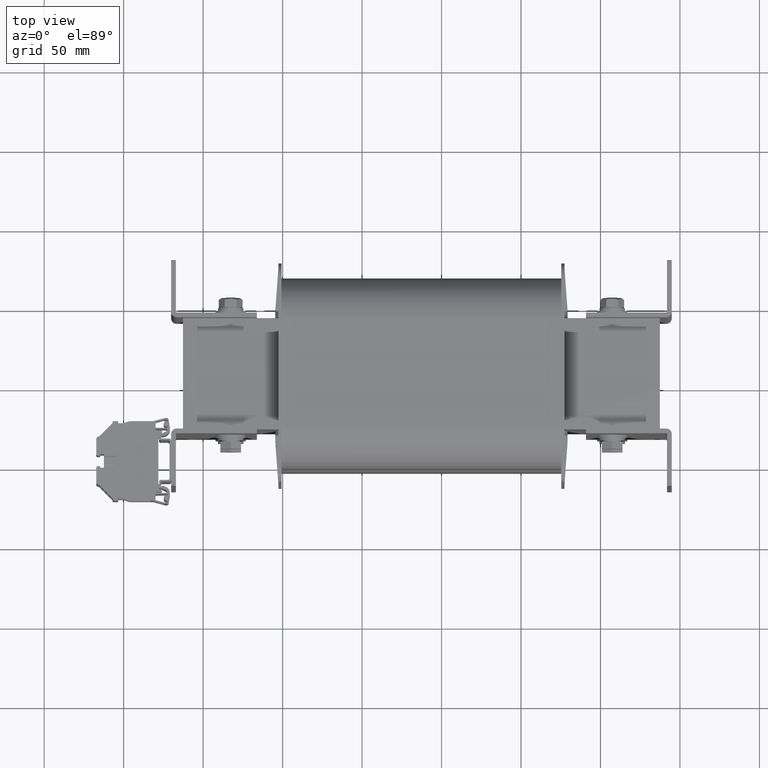
[diagram: clean part render]
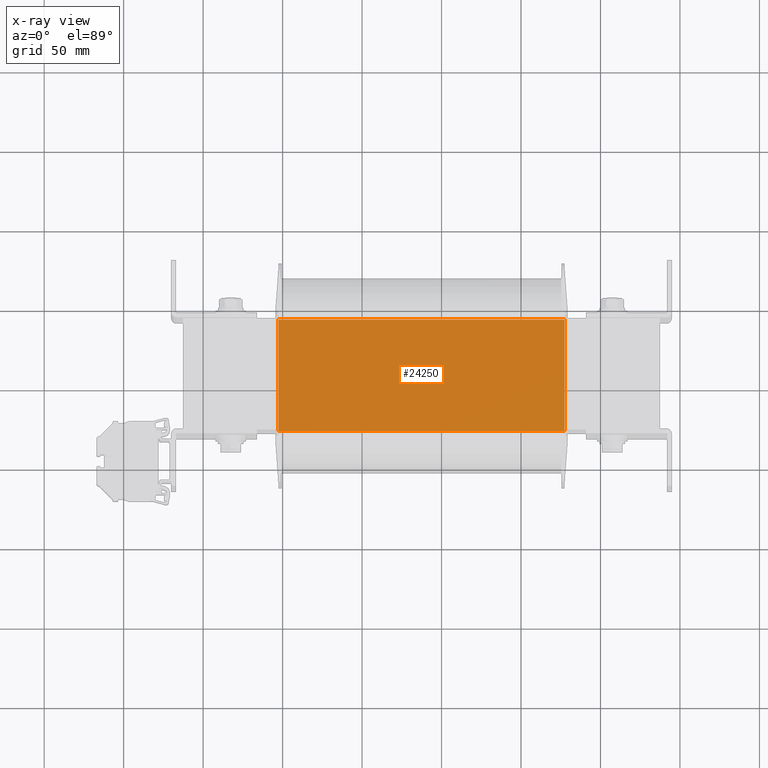
[diagram: x-ray — body ghosted, one internal face saturated and labeled with its STEP entity id]
A machine part, top view, then the same camera in x-ray: the body is ghosted and one INTERNAL B-rep face — a face not visible from any outside direction — is saturated and labeled: STEP entity #24250.
In plain terms, the highlighted planar face has unit normal (-0, -0, -1).
Its self-contained STEP definition (entity closure, byte-faithful):
#2368=FACE_OUTER_BOUND('',#3720,.T.);
#3720=EDGE_LOOP('',(#16228,#16229,#16230,#16231));
#5158=LINE('',#35282,#7747);
#5159=LINE('',#35284,#7748);
#5160=LINE('',#35286,#7749);
#5161=LINE('',#35287,#7750);
#7747=VECTOR('',#28172,10.);
#7748=VECTOR('',#28173,10.);
#7749=VECTOR('',#28174,10.);
#7750=VECTOR('',#28175,10.);
#10336=VERTEX_POINT('',#35280);
#10337=VERTEX_POINT('',#35281);
#10338=VERTEX_POINT('',#35283);
#10339=VERTEX_POINT('',#35285);
#12635=EDGE_CURVE('',#10336,#10337,#5158,.T.);
#12636=EDGE_CURVE('',#10337,#10338,#5159,.T.);
#12637=EDGE_CURVE('',#10339,#10338,#5160,.T.);
#12638=EDGE_CURVE('',#10336,#10339,#5161,.T.);
#16228=ORIENTED_EDGE('',*,*,#12635,.T.);
#16229=ORIENTED_EDGE('',*,*,#12636,.T.);
#16230=ORIENTED_EDGE('',*,*,#12637,.F.);
#16231=ORIENTED_EDGE('',*,*,#12638,.F.);
#23414=PLANE('',#25907);
#24250=ADVANCED_FACE('',(#2368),#23414,.T.);
#25907=AXIS2_PLACEMENT_3D('',#35279,#28170,#28171);
#28170=DIRECTION('center_axis',(-1.08555140185571E-15,0.,-1.));
#28171=DIRECTION('ref_axis',(-1.,0.,1.08555140185571E-15));
#28172=DIRECTION('',(-1.,0.,1.08555140185571E-15));
#28173=DIRECTION('',(0.,1.,0.));
#28174=DIRECTION('',(-1.,0.,1.08555140185571E-15));
#28175=DIRECTION('',(0.,1.,0.));
#35279=CARTESIAN_POINT('Origin',(-59.9999999999999,0.,120.));
#35280=CARTESIAN_POINT('',(-59.9999999999999,0.,120.));
#35281=CARTESIAN_POINT('',(-240.,0.,120.));
#35282=CARTESIAN_POINT('',(-59.9999999999999,0.,120.));
#35283=CARTESIAN_POINT('',(-240.,70.,120.));
#35284=CARTESIAN_POINT('',(-240.,0.,120.));
#35285=CARTESIAN_POINT('',(-59.9999999999999,70.,120.));
#35286=CARTESIAN_POINT('',(-59.9999999999999,70.,120.));
#35287=CARTESIAN_POINT('',(-59.9999999999999,0.,120.));